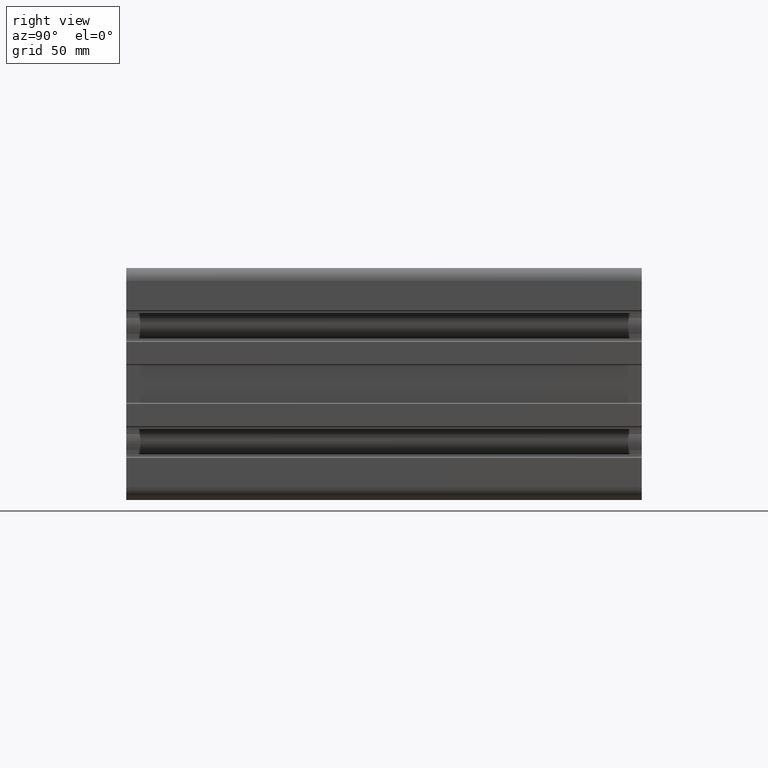
[diagram: clean part render]
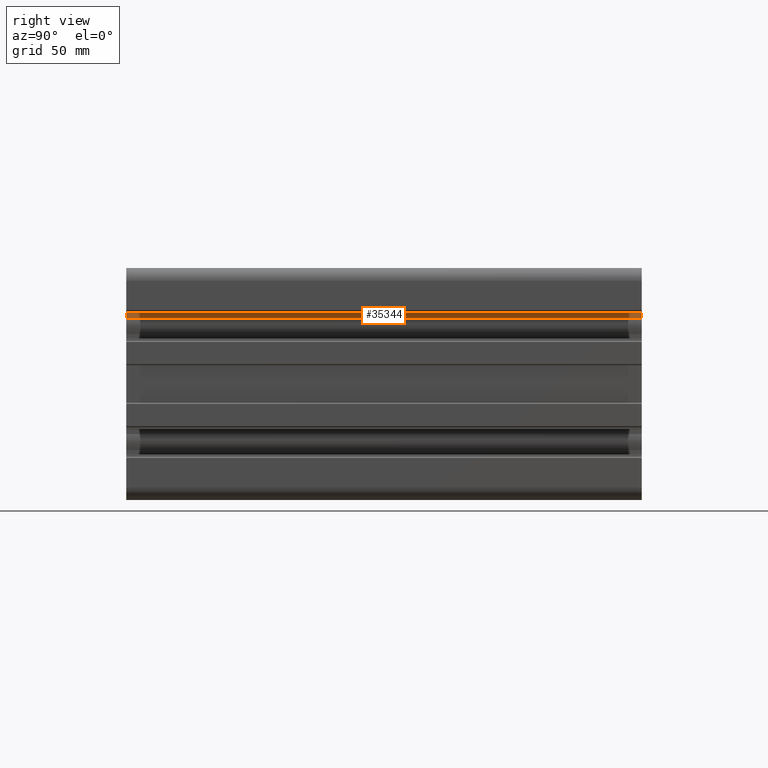
[diagram: same view with one face highlighted and labeled with its STEP entity id]
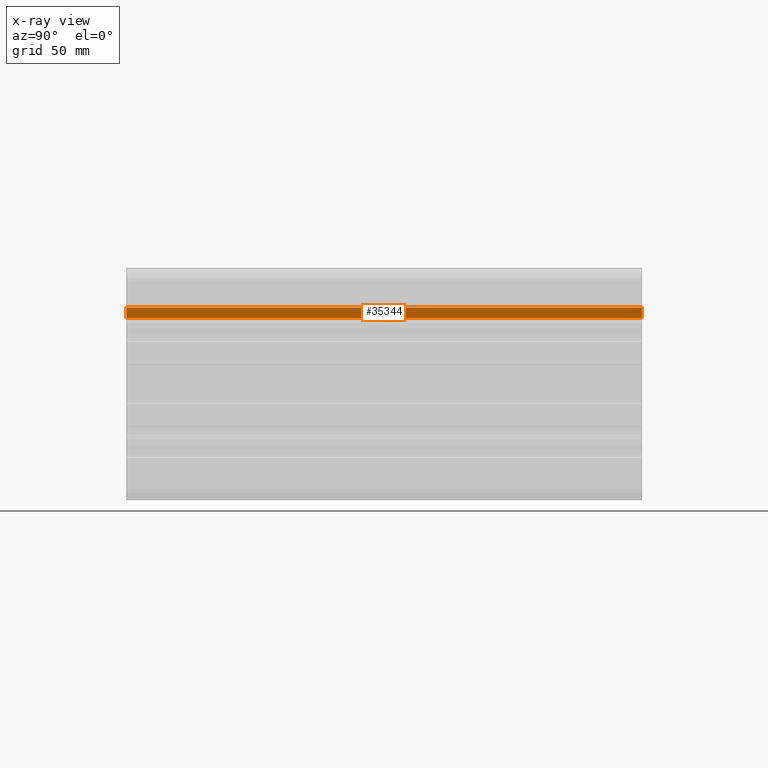
[diagram: x-ray of the same camera — body ghosted, the highlighted face saturated]
A machine part, right view. The second image highlights one B-rep face of the part: STEP entity #35344.
The next image is the same camera in x-ray: the body ghosted, the highlighted face saturated — about 0% of this face is hidden behind the body in this view.
In plain terms, the highlighted planar face has unit normal (1, -0, 0).
Its self-contained STEP definition (entity closure, byte-faithful):
#206 = PLANE ( 'NONE',  #20682 ) ;
#625 = CARTESIAN_POINT ( 'NONE',  ( 77.00000000000000000, 0.0000000000000000000, 29.58370490961000200 ) ) ;
#2405 = FACE_OUTER_BOUND ( 'NONE', #31503, .T. ) ;
#4678 = CARTESIAN_POINT ( 'NONE',  ( 77.00000000000000000, 0.0000000000000000000, 29.58370490961000200 ) ) ;
#5980 = VERTEX_POINT ( 'NONE', #31476 ) ;
#6293 = DIRECTION ( 'NONE',  ( -0.0000000000000000000, -1.000000000000000000, -0.0000000000000000000 ) ) ;
#7027 = DIRECTION ( 'NONE',  ( 1.000000000000000000, -0.0000000000000000000, 0.0000000000000000000 ) ) ;
#7154 = DIRECTION ( 'NONE',  ( 0.0000000000000000000, 0.0000000000000000000, -1.000000000000000000 ) ) ;
#7911 = EDGE_CURVE ( 'NONE', #11220, #38056, #29675, .T. ) ;
#10424 = LINE ( 'NONE', #12817, #31227 ) ;
#11220 = VERTEX_POINT ( 'NONE', #24082 ) ;
#12584 = VECTOR ( 'NONE', #15995, 1000.000000000000000 ) ;
#12817 = CARTESIAN_POINT ( 'NONE',  ( 77.00000000000007100, 0.0000000000000000000, 25.62249899919901700 ) ) ;
#13053 = VERTEX_POINT ( 'NONE', #41432 ) ;
#13728 = ORIENTED_EDGE ( 'NONE', *, *, #16388, .T. ) ;
#14475 = EDGE_CURVE ( 'NONE', #11220, #5980, #28834, .T. ) ;
#15995 = DIRECTION ( 'NONE',  ( 0.0000000000000000000, 0.0000000000000000000, -1.000000000000000000 ) ) ;
#16388 = EDGE_CURVE ( 'NONE', #38056, #13053, #29230, .T. ) ;
#17746 = DIRECTION ( 'NONE',  ( -0.0000000000000000000, -1.000000000000000000, -0.0000000000000000000 ) ) ;
#18263 = ORIENTED_EDGE ( 'NONE', *, *, #7911, .T. ) ;
#18821 = ORIENTED_EDGE ( 'NONE', *, *, #22181, .F. ) ;
#20682 = AXIS2_PLACEMENT_3D ( 'NONE', #625, #7027, #7154 ) ;
#21551 = VECTOR ( 'NONE', #24395, 1000.000000000000000 ) ;
#22181 = EDGE_CURVE ( 'NONE', #5980, #13053, #10424, .T. ) ;
#24082 = CARTESIAN_POINT ( 'NONE',  ( 77.00000000000000000, 200.0000000000000000, 29.58370490961000200 ) ) ;
#24395 = DIRECTION ( 'NONE',  ( -0.0000000000000000000, 0.0000000000000000000, -1.000000000000000000 ) ) ;
#24850 = CARTESIAN_POINT ( 'NONE',  ( 77.00000000000000000, 0.0000000000000000000, 29.58370490961000200 ) ) ;
#26521 = VECTOR ( 'NONE', #17746, 1000.000000000000000 ) ;
#28834 = LINE ( 'NONE', #34307, #21551 ) ;
#29230 = LINE ( 'NONE', #42486, #12584 ) ;
#29675 = LINE ( 'NONE', #24850, #26521 ) ;
#31227 = VECTOR ( 'NONE', #6293, 1000.000000000000000 ) ;
#31476 = CARTESIAN_POINT ( 'NONE',  ( 77.00000000000004300, 200.0000000000000000, 25.62249899919912000 ) ) ;
#31503 = EDGE_LOOP ( 'NONE', ( #13728, #18821, #33462, #18263 ) ) ;
#33462 = ORIENTED_EDGE ( 'NONE', *, *, #14475, .F. ) ;
#34307 = CARTESIAN_POINT ( 'NONE',  ( 77.00000000000000000, 200.0000000000000000, 8.881784197001250700E-015 ) ) ;
#35344 = ADVANCED_FACE ( 'NONE', ( #2405 ), #206, .T. ) ;
#38056 = VERTEX_POINT ( 'NONE', #4678 ) ;
#41432 = CARTESIAN_POINT ( 'NONE',  ( 77.00000000000004300, 0.0000000000000000000, 25.62249899919912000 ) ) ;
#42486 = CARTESIAN_POINT ( 'NONE',  ( 77.00000000000000000, 0.0000000000000000000, 29.58370490961000200 ) ) ;